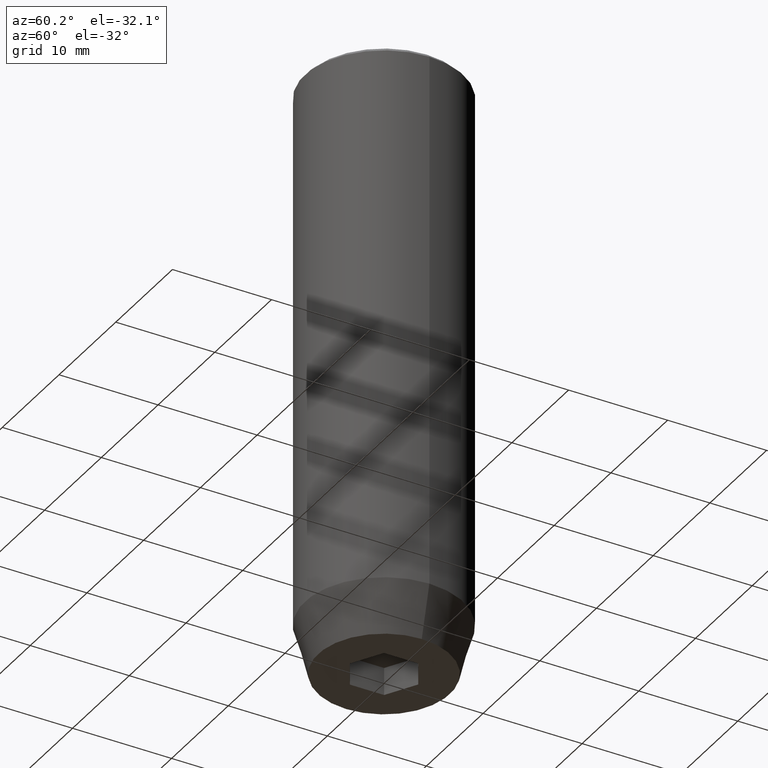
[diagram: clean part render]
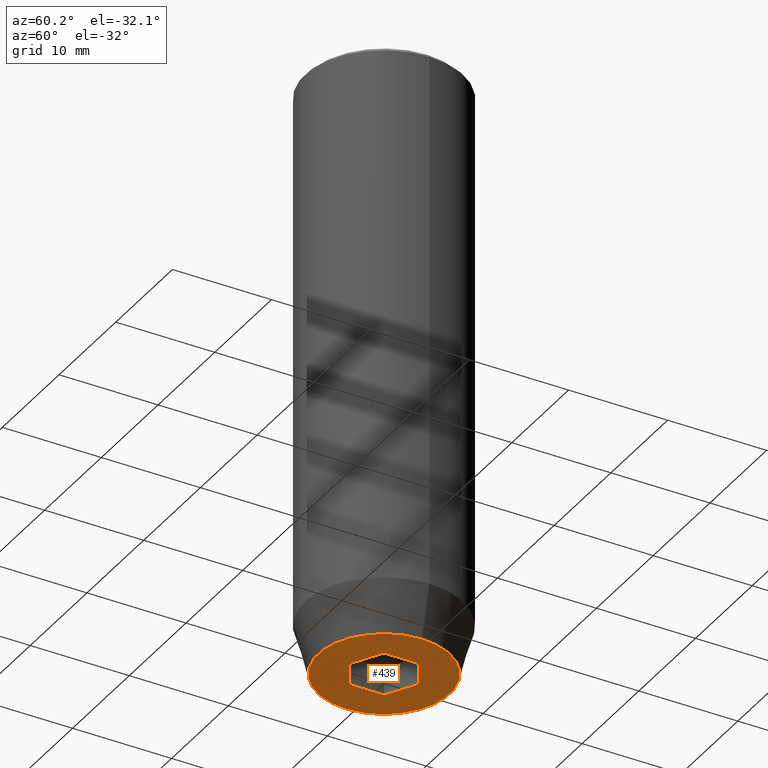
[diagram: same view with one face highlighted and labeled with its STEP entity id]
A machine part, auxiliary view. The second image highlights one B-rep face of the part: STEP entity #439.
In plain terms, the highlighted planar face has unit normal (0, 0, -1).
Its self-contained STEP definition (entity closure, byte-faithful):
#12 = VECTOR ( 'NONE', #70, 1000.000000000000000 ) ;
#15 = PLANE ( 'NONE',  #400 ) ;
#26 = CARTESIAN_POINT ( 'NONE',  ( 3.000000000000000000, 0.000000000000000000, -60.00000000000000000 ) ) ;
#44 = VERTEX_POINT ( 'NONE', #521 ) ;
#49 = EDGE_LOOP ( 'NONE', ( #360, #341, #455, #183, #357, #366 ) ) ;
#61 = CARTESIAN_POINT ( 'NONE',  ( 0.000000000000000000, 0.000000000000000000, -60.00000000000000000 ) ) ;
#65 = CARTESIAN_POINT ( 'NONE',  ( 3.000000000000000000, -1.732050807568876527, -60.00000000000000000 ) ) ;
#70 = DIRECTION ( 'NONE',  ( 0.000000000000000000, -1.000000000000000000, 0.000000000000000000 ) ) ;
#82 = VECTOR ( 'NONE', #339, 1000.000000000000000 ) ;
#84 = EDGE_CURVE ( 'NONE', #44, #117, #170, .T. ) ;
#88 = VERTEX_POINT ( 'NONE', #575 ) ;
#117 = VERTEX_POINT ( 'NONE', #582 ) ;
#125 = DIRECTION ( 'NONE',  ( 0.8660254037844385966, -0.5000000000000001110, 0.000000000000000000 ) ) ;
#162 = VERTEX_POINT ( 'NONE', #192 ) ;
#170 = LINE ( 'NONE', #261, #213 ) ;
#178 = DIRECTION ( 'NONE',  ( 0.8660254037844387076, 0.4999999999999999445, 0.000000000000000000 ) ) ;
#183 = ORIENTED_EDGE ( 'NONE', *, *, #361, .F. ) ;
#192 = CARTESIAN_POINT ( 'NONE',  ( -3.000000000000000000, -1.732050807568877859, -60.00000000000000000 ) ) ;
#199 = CARTESIAN_POINT ( 'NONE',  ( 0.000000000000000000, 6.660254037844384634, -60.00000000000000000 ) ) ;
#207 = LINE ( 'NONE', #26, #12 ) ;
#208 = DIRECTION ( 'NONE',  ( -0.8660254037844385966, 0.5000000000000001110, 0.000000000000000000 ) ) ;
#213 = VECTOR ( 'NONE', #125, 1000.000000000000000 ) ;
#217 = CARTESIAN_POINT ( 'NONE',  ( 6.660254037844384634, 0.000000000000000000, -60.00000000000000000 ) ) ;
#219 = VERTEX_POINT ( 'NONE', #65 ) ;
#229 = VERTEX_POINT ( 'NONE', #510 ) ;
#236 = ORIENTED_EDGE ( 'NONE', *, *, #394, .F. ) ;
#240 = EDGE_CURVE ( 'NONE', #117, #219, #207, .T. ) ;
#245 = FACE_OUTER_BOUND ( 'NONE', #303, .T. ) ;
#247 = VERTEX_POINT ( 'NONE', #217 ) ;
#255 = AXIS2_PLACEMENT_3D ( 'NONE', #61, #471, #295 ) ;
#259 = EDGE_CURVE ( 'NONE', #162, #229, #530, .T. ) ;
#260 = VECTOR ( 'NONE', #440, 1000.000000000000000 ) ;
#261 = CARTESIAN_POINT ( 'NONE',  ( 1.500000000000000222, 2.598076211353315568, -60.00000000000000000 ) ) ;
#267 = LINE ( 'NONE', #446, #333 ) ;
#270 = DIRECTION ( 'NONE',  ( -0.000000000000000000, -0.000000000000000000, 1.000000000000000000 ) ) ;
#279 = LINE ( 'NONE', #564, #82 ) ;
#295 = DIRECTION ( 'NONE',  ( 1.000000000000000000, 0.000000000000000000, 0.000000000000000000 ) ) ;
#303 = EDGE_LOOP ( 'NONE', ( #236, #331 ) ) ;
#304 = EDGE_CURVE ( 'NONE', #534, #162, #267, .T. ) ;
#305 = AXIS2_PLACEMENT_3D ( 'NONE', #452, #270, #457 ) ;
#331 = ORIENTED_EDGE ( 'NONE', *, *, #541, .F. ) ;
#333 = VECTOR ( 'NONE', #208, 1000.000000000000000 ) ;
#339 = DIRECTION ( 'NONE',  ( -0.8660254037844385966, -0.5000000000000001110, 0.000000000000000000 ) ) ;
#341 = ORIENTED_EDGE ( 'NONE', *, *, #259, .F. ) ;
#347 = CARTESIAN_POINT ( 'NONE',  ( -3.000000000000000444, -7.511572993685800087E-16, -60.00000000000000000 ) ) ;
#357 = ORIENTED_EDGE ( 'NONE', *, *, #240, .F. ) ;
#360 = ORIENTED_EDGE ( 'NONE', *, *, #495, .F. ) ;
#361 = EDGE_CURVE ( 'NONE', #219, #534, #279, .T. ) ;
#362 = CARTESIAN_POINT ( 'NONE',  ( -2.168404344971008868E-16, -3.464101615137754830, -60.00000000000000000 ) ) ;
#366 = ORIENTED_EDGE ( 'NONE', *, *, #84, .F. ) ;
#392 = CIRCLE ( 'NONE', #305, 6.660254037844384634 ) ;
#394 = EDGE_CURVE ( 'NONE', #247, #88, #454, .T. ) ;
#400 = AXIS2_PLACEMENT_3D ( 'NONE', #199, #479, #481 ) ;
#439 = ADVANCED_FACE ( 'NONE', ( #461, #245 ), #15, .T. ) ;
#440 = DIRECTION ( 'NONE',  ( -2.503857664561932376E-16, 1.000000000000000000, 0.000000000000000000 ) ) ;
#446 = CARTESIAN_POINT ( 'NONE',  ( -1.500000000000000666, -2.598076211353316456, -60.00000000000000000 ) ) ;
#449 = LINE ( 'NONE', #485, #538 ) ;
#452 = CARTESIAN_POINT ( 'NONE',  ( 0.000000000000000000, 0.000000000000000000, -60.00000000000000000 ) ) ;
#454 = CIRCLE ( 'NONE', #255, 6.660254037844384634 ) ;
#455 = ORIENTED_EDGE ( 'NONE', *, *, #304, .F. ) ;
#457 = DIRECTION ( 'NONE',  ( 1.000000000000000000, 0.000000000000000000, 0.000000000000000000 ) ) ;
#461 = FACE_BOUND ( 'NONE', #49, .T. ) ;
#471 = DIRECTION ( 'NONE',  ( -0.000000000000000000, -0.000000000000000000, 1.000000000000000000 ) ) ;
#479 = DIRECTION ( 'NONE',  ( 0.000000000000000000, 0.000000000000000000, -1.000000000000000000 ) ) ;
#481 = DIRECTION ( 'NONE',  ( -1.000000000000000000, 0.000000000000000000, -0.000000000000000000 ) ) ;
#485 = CARTESIAN_POINT ( 'NONE',  ( -1.499999999999999556, 2.598076211353316012, -60.00000000000000000 ) ) ;
#495 = EDGE_CURVE ( 'NONE', #229, #44, #449, .T. ) ;
#510 = CARTESIAN_POINT ( 'NONE',  ( -3.000000000000000888, 1.732050807568876527, -60.00000000000000000 ) ) ;
#521 = CARTESIAN_POINT ( 'NONE',  ( -2.168404344971008868E-16, 3.464101615137753942, -60.00000000000000000 ) ) ;
#530 = LINE ( 'NONE', #347, #260 ) ;
#534 = VERTEX_POINT ( 'NONE', #362 ) ;
#538 = VECTOR ( 'NONE', #178, 999.9999999999998863 ) ;
#541 = EDGE_CURVE ( 'NONE', #88, #247, #392, .T. ) ;
#564 = CARTESIAN_POINT ( 'NONE',  ( 1.500000000000000222, -2.598076211353315568, -60.00000000000000000 ) ) ;
#575 = CARTESIAN_POINT ( 'NONE',  ( -6.660254037844384634, 8.976816591066593210E-16, -60.00000000000000000 ) ) ;
#582 = CARTESIAN_POINT ( 'NONE',  ( 3.000000000000000000, 1.732050807568876527, -60.00000000000000000 ) ) ;